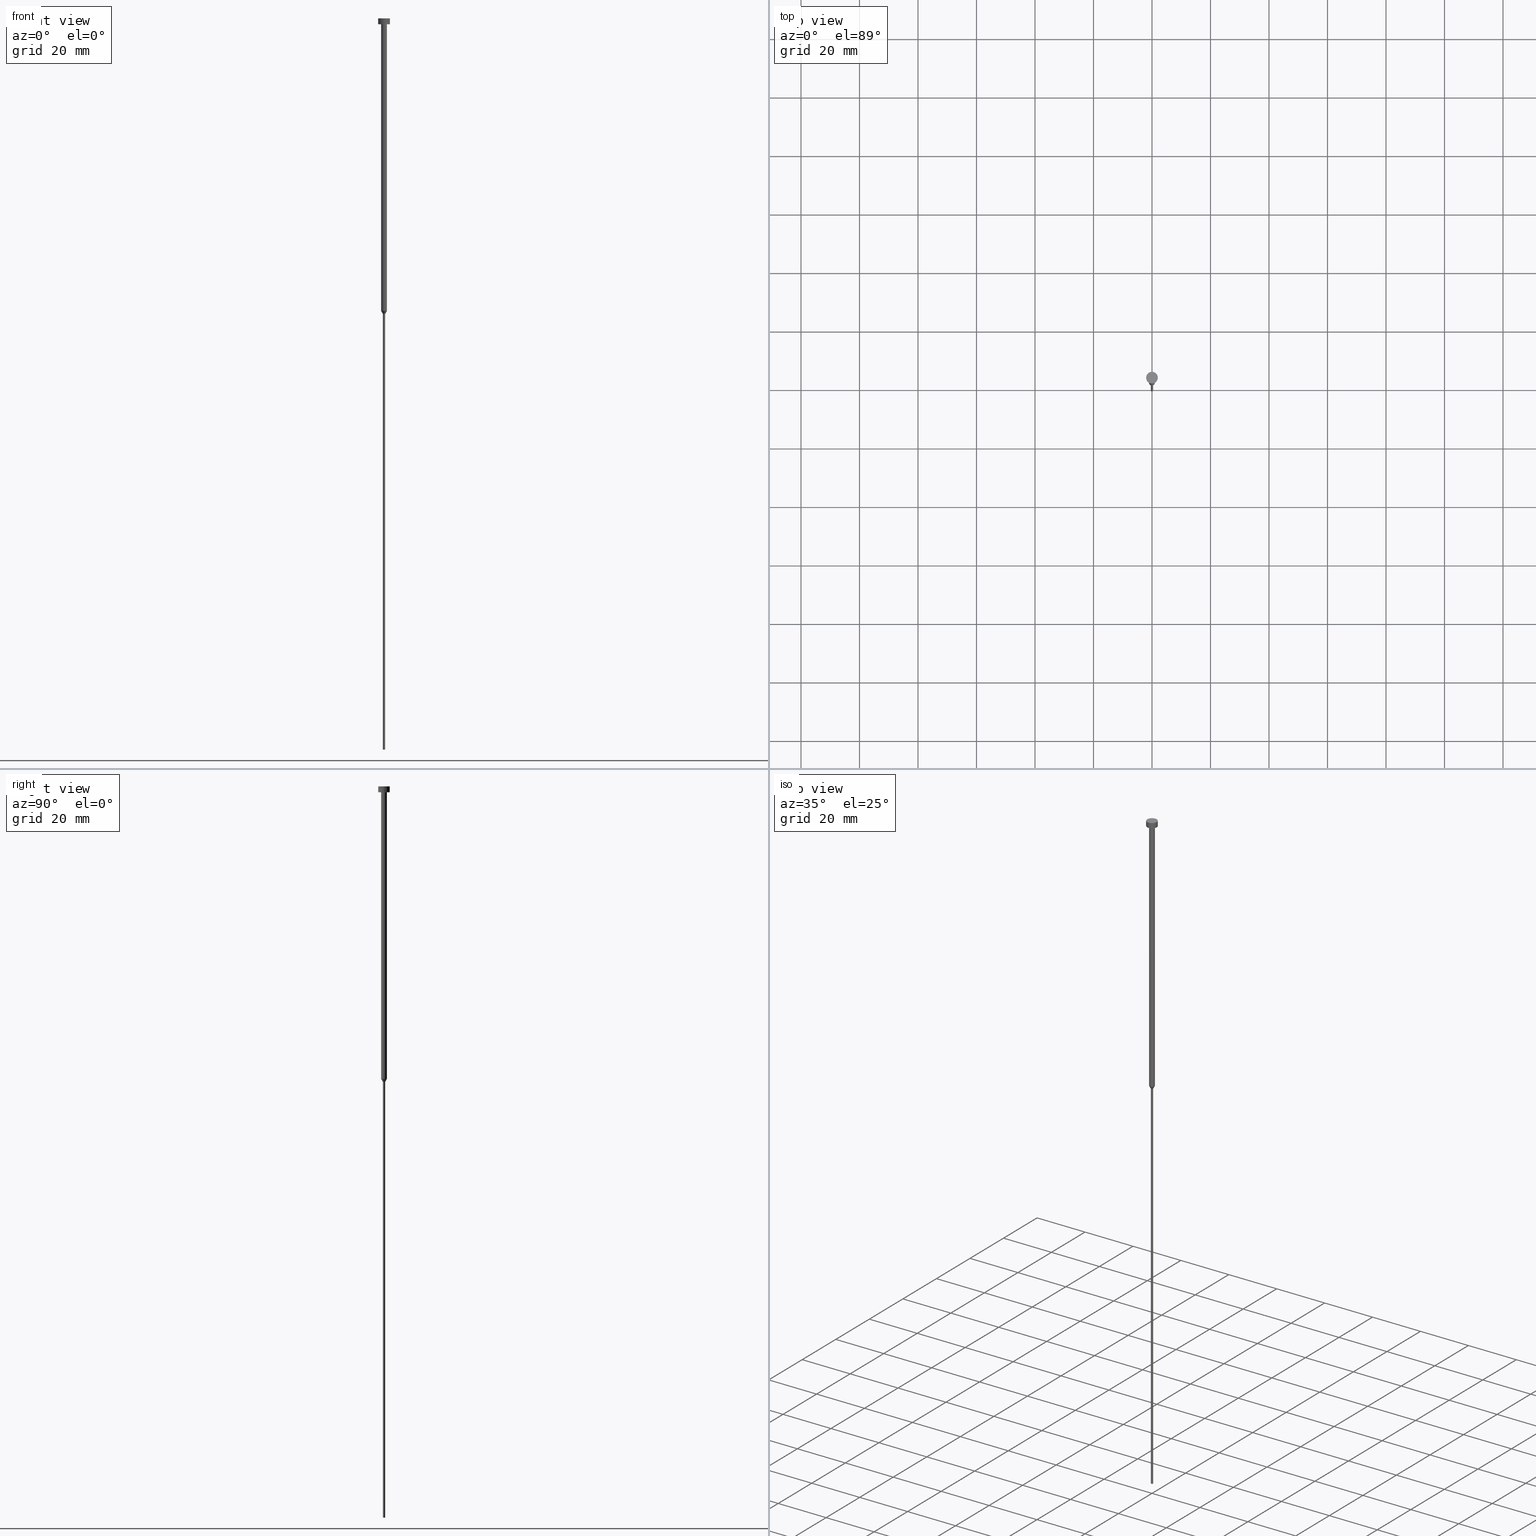
[diagram: canonical four-view strip — front | top / right | iso, engineering-drawing reading convention]
A machine part, canonical four-view strip (front | top / right | iso — engineering-drawing reading convention). The complete STEP part file that produces these views, byte-faithful:
ISO-10303-21;
HEADER;
FILE_DESCRIPTION (( 'STEP AP203' ),
    '1' );
FILE_NAME ('155c.STEP',
    '2023-02-13T10:58:49',
    ( '' ),
    ( '' ),
    'SwSTEP 2.0',
    'SolidWorks 2019',
    '' );
FILE_SCHEMA (( 'CONFIG_CONTROL_DESIGN' ));
ENDSEC;

DATA;
#1 = CARTESIAN_POINT ( 'NONE',  ( 0.000000000000000000, 0.000000000000000000, -250.0000000000000000 ) ) ;
#2 = DIRECTION ( 'NONE',  ( -0.000000000000000000, -0.000000000000000000, 1.000000000000000000 ) ) ;
#3 = APPROVAL_ROLE ( '' ) ;
#4 = DIRECTION ( 'NONE',  ( 1.000000000000000000, 0.000000000000000000, 0.000000000000000000 ) ) ;
#5 = CARTESIAN_POINT ( 'NONE',  ( 0.000000000000000000, 0.000000000000000000, -250.0000000000000000 ) ) ;
#6 = AXIS2_PLACEMENT_3D ( 'NONE', #98, #268, #211 ) ;
#7 = APPROVAL_ROLE ( '' ) ;
#8 = DIRECTION ( 'NONE',  ( 1.000000000000000000, 0.000000000000000000, 0.000000000000000000 ) ) ;
#9 = CARTESIAN_POINT ( 'NONE',  ( 2.000000000000000000, 0.000000000000000000, -2.000000000000000444 ) ) ;
#10 = CALENDAR_DATE ( 2023, 13, 2 ) ;
#11 = EDGE_CURVE ( 'NONE', #348, #246, #221, .T. ) ;
#12 = DIRECTION ( 'NONE',  ( -0.000000000000000000, -0.000000000000000000, 1.000000000000000000 ) ) ;
#13 = CONICAL_SURFACE ( 'NONE', #187, 1.000000000000003109, 0.5235987755983013692 ) ;
#14 = DIRECTION ( 'NONE',  ( 1.000000000000000000, 0.000000000000000000, 0.000000000000000000 ) ) ;
#15 = CARTESIAN_POINT ( 'NONE',  ( 1.000000000000003331, 0.000000000000000000, 0.000000000000000000 ) ) ;
#16 = CYLINDRICAL_SURFACE ( 'NONE', #104, 2.000000000000000000 ) ;
#17 = AXIS2_PLACEMENT_3D ( 'NONE', #92, #234, #204 ) ;
#18 = APPROVAL_ROLE ( '' ) ;
#19 = EDGE_LOOP ( 'NONE', ( #85, #175 ) ) ;
#20 = ORIENTED_EDGE ( 'NONE', *, *, #295, .F. ) ;
#21 = CIRCLE ( 'NONE', #193, 2.000000000000000000 ) ;
#22 = CIRCLE ( 'NONE', #199, 0.4000000000000000222 ) ;
#23 = VERTEX_POINT ( 'NONE', #165 ) ;
#24 = DIRECTION ( 'NONE',  ( 1.000000000000000000, 0.000000000000000000, 0.000000000000000000 ) ) ;
#25 = VERTEX_POINT ( 'NONE', #141 ) ;
#26 = CC_DESIGN_PERSON_AND_ORGANIZATION_ASSIGNMENT ( #219, #294, ( #49 ) ) ;
#27 = ORIENTED_EDGE ( 'NONE', *, *, #220, .T. ) ;
#28 = AXIS2_PLACEMENT_3D ( 'NONE', #122, #205, #265 ) ;
#29 = CARTESIAN_POINT ( 'NONE',  ( 2.000000000000000000, 0.000000000000000000, -2.449293598294705921E-16 ) ) ;
#30 = DIRECTION ( 'NONE',  ( -0.000000000000000000, -0.000000000000000000, 1.000000000000000000 ) ) ;
#31 = ADVANCED_FACE ( 'NONE', ( #115 ), #201, .T. ) ;
#32 = CARTESIAN_POINT ( 'NONE',  ( 0.000000000000000000, 0.000000000000000000, -100.0000000000000000 ) ) ;
#33 = DIRECTION ( 'NONE',  ( -1.000000000000000000, 0.000000000000000000, -0.000000000000000000 ) ) ;
#34 = CALENDAR_DATE ( 2023, 13, 2 ) ;
#35 = VECTOR ( 'NONE', #99, 1000.000000000000227 ) ;
#36 = AXIS2_PLACEMENT_3D ( 'NONE', #60, #86, #148 ) ;
#37 = DIRECTION ( 'NONE',  ( 1.000000000000000000, 0.000000000000000000, 0.000000000000000000 ) ) ;
#38 = APPROVAL_PERSON_ORGANIZATION ( #337, #276, #7 ) ;
#39 = PLANE ( 'NONE',  #111 ) ;
#40 = ADVANCED_FACE ( 'NONE', ( #145 ), #330, .T. ) ;
#41 = LINE ( 'NONE', #69, #67 ) ;
#42 = FACE_OUTER_BOUND ( 'NONE', #253, .T. ) ;
#43 = CARTESIAN_POINT ( 'NONE',  ( 0.000000000000000000, 0.000000000000000000, -1.224646799147352961E-16 ) ) ;
#44 = ADVANCED_FACE ( 'NONE', ( #228 ), #13, .T. ) ;
#45 = DIRECTION ( 'NONE',  ( 1.000000000000000000, 0.000000000000000000, 0.000000000000000000 ) ) ;
#46 = CALENDAR_DATE ( 2023, 13, 2 ) ;
#47 = CLOSED_SHELL ( 'NONE', ( #185, #323, #44, #256, #40, #56, #125, #31, #101, #308, #251 ) ) ;
#48 = APPROVAL_PERSON_ORGANIZATION ( #255, #329, #3 ) ;
#49 = PRODUCT_DEFINITION ( 'NEZN�M�', '', #339, #212 ) ;
#50 = CALENDAR_DATE ( 2023, 13, 2 ) ;
#51 = ORIENTED_EDGE ( 'NONE', *, *, #240, .F. ) ;
#52 = ORIENTED_EDGE ( 'NONE', *, *, #119, .F. ) ;
#53 = ORIENTED_EDGE ( 'NONE', *, *, #334, .T. ) ;
#54 = CIRCLE ( 'NONE', #123, 1.000000000000003109 ) ;
#55 = ORIENTED_EDGE ( 'NONE', *, *, #62, .T. ) ;
#56 = ADVANCED_FACE ( 'NONE', ( #336 ), #285, .T. ) ;
#57 = SECURITY_CLASSIFICATION_LEVEL ( 'unclassified' ) ;
#58 = ORIENTED_EDGE ( 'NONE', *, *, #349, .T. ) ;
#59 = CARTESIAN_POINT ( 'NONE',  ( -0.3999999999999999667, 4.898587196589412459E-17, -101.0392304845413349 ) ) ;
#60 = CARTESIAN_POINT ( 'NONE',  ( 0.000000000000000000, 0.000000000000000000, -250.0000000000000000 ) ) ;
#61 = VECTOR ( 'NONE', #279, 1000.000000000000000 ) ;
#62 = EDGE_CURVE ( 'NONE', #25, #134, #259, .T. ) ;
#63 = CC_DESIGN_APPROVAL ( #276, ( #170 ) ) ;
#64 = DIRECTION ( 'NONE',  ( 1.000000000000000000, 0.000000000000000000, 0.000000000000000000 ) ) ;
#65 = FACE_OUTER_BOUND ( 'NONE', #79, .T. ) ;
#66 = ORIENTED_EDGE ( 'NONE', *, *, #229, .F. ) ;
#67 = VECTOR ( 'NONE', #151, 1000.000000000000227 ) ;
#68 = CIRCLE ( 'NONE', #182, 1.000000000000003109 ) ;
#69 = CARTESIAN_POINT ( 'NONE',  ( 1.000000000000003109, 0.000000000000000000, -100.0000000000000000 ) ) ;
#70 = CARTESIAN_POINT ( 'NONE',  ( 0.000000000000000000, 0.000000000000000000, -101.0392304845413349 ) ) ;
#71 = CARTESIAN_POINT ( 'NONE',  ( 0.000000000000000000, 0.000000000000000000, -2.449293598294705921E-16 ) ) ;
#72 = ADVANCED_BREP_SHAPE_REPRESENTATION ( '155c', ( #207, #344 ), #90 ) ;
#73 = EDGE_CURVE ( 'NONE', #277, #162, #156, .T. ) ;
#74 = CARTESIAN_POINT ( 'NONE',  ( 0.000000000000000000, 0.000000000000000000, -2.000000000000000444 ) ) ;
#75 = LOCAL_TIME ( 11, 58, 49.00000000000000000, #278 ) ;
#76 = CYLINDRICAL_SURFACE ( 'NONE', #177, 1.000000000000003331 ) ;
#77 = APPROVAL_DATE_TIME ( #318, #329 ) ;
#78 = CARTESIAN_POINT ( 'NONE',  ( 0.000000000000000000, 0.000000000000000000, 0.000000000000000000 ) ) ;
#79 = EDGE_LOOP ( 'NONE', ( #222, #20 ) ) ;
#80 = VERTEX_POINT ( 'NONE', #307 ) ;
#81 = PRODUCT_RELATED_PRODUCT_CATEGORY ( 'detail', '', ( #121 ) ) ;
#82 = AXIS2_PLACEMENT_3D ( 'NONE', #5, #261, #33 ) ;
#83 = APPROVAL_PERSON_ORGANIZATION ( #188, #96, #18 ) ;
#84 = PERSON_AND_ORGANIZATION ( #132, #248 ) ;
#85 = ORIENTED_EDGE ( 'NONE', *, *, #73, .F. ) ;
#86 = DIRECTION ( 'NONE',  ( -0.000000000000000000, -0.000000000000000000, 1.000000000000000000 ) ) ;
#87 =( NAMED_UNIT ( * ) PLANE_ANGLE_UNIT ( ) SI_UNIT ( $, .RADIAN. ) );
#88 = DIRECTION ( 'NONE',  ( -1.000000000000000000, 0.000000000000000000, -0.000000000000000000 ) ) ;
#89 = AXIS2_PLACEMENT_3D ( 'NONE', #288, #178, #239 ) ;
#90 =( GEOMETRIC_REPRESENTATION_CONTEXT ( 3 ) GLOBAL_UNCERTAINTY_ASSIGNED_CONTEXT ( ( #343 ) ) GLOBAL_UNIT_ASSIGNED_CONTEXT ( ( #167, #87, #109 ) ) REPRESENTATION_CONTEXT ( 'NONE', 'WORKASPACE' ) );
#91 = DIRECTION ( 'NONE',  ( 1.000000000000000000, 0.000000000000000000, 0.000000000000000000 ) ) ;
#92 = CARTESIAN_POINT ( 'NONE',  ( 0.000000000000000000, 0.000000000000000000, 0.000000000000000000 ) ) ;
#93 = CARTESIAN_POINT ( 'NONE',  ( 0.000000000000000000, 0.000000000000000000, -101.0392304845413349 ) ) ;
#94 = FACE_OUTER_BOUND ( 'NONE', #158, .T. ) ;
#95 = DIRECTION ( 'NONE',  ( -0.000000000000000000, -0.000000000000000000, 1.000000000000000000 ) ) ;
#96 = APPROVAL ( #354, 'NEUR�EN�' ) ;
#97 = DIRECTION ( 'NONE',  ( 1.000000000000000000, 0.000000000000000000, 0.000000000000000000 ) ) ;
#98 = CARTESIAN_POINT ( 'NONE',  ( 0.000000000000000000, 0.000000000000000000, 0.000000000000000000 ) ) ;
#99 = DIRECTION ( 'NONE',  ( -0.5000000000000021094, 6.123233995736791920E-17, 0.8660254037844373753 ) ) ;
#100 = DATE_AND_TIME ( #347, #75 ) ;
#101 = ADVANCED_FACE ( 'NONE', ( #197, #65 ), #202, .T. ) ;
#102 = VERTEX_POINT ( 'NONE', #29 ) ;
#103 = ORIENTED_EDGE ( 'NONE', *, *, #73, .T. ) ;
#104 = AXIS2_PLACEMENT_3D ( 'NONE', #129, #126, #14 ) ;
#105 = CC_DESIGN_APPROVAL ( #329, ( #49 ) ) ;
#106 = VERTEX_POINT ( 'NONE', #262 ) ;
#107 = CC_DESIGN_PERSON_AND_ORGANIZATION_ASSIGNMENT ( #164, #112, ( #170 ) ) ;
#108 = ORIENTED_EDGE ( 'NONE', *, *, #166, .F. ) ;
#109 =( NAMED_UNIT ( * ) SI_UNIT ( $, .STERADIAN. ) SOLID_ANGLE_UNIT ( ) );
#110 = EDGE_LOOP ( 'NONE', ( #297, #113 ) ) ;
#111 = AXIS2_PLACEMENT_3D ( 'NONE', #43, #150, #206 ) ;
#112 = PERSON_AND_ORGANIZATION_ROLE ( 'classification_officer' ) ;
#113 = ORIENTED_EDGE ( 'NONE', *, *, #119, .T. ) ;
#114 = MECHANICAL_CONTEXT ( 'NONE', #186, 'mechanical' ) ;
#115 = FACE_OUTER_BOUND ( 'NONE', #322, .T. ) ;
#116 = APPROVAL_STATUS ( 'not_yet_approved' ) ;
#117 = DIRECTION ( 'NONE',  ( -0.000000000000000000, -0.000000000000000000, 1.000000000000000000 ) ) ;
#118 = CARTESIAN_POINT ( 'NONE',  ( 0.000000000000000000, 0.000000000000000000, 0.000000000000000000 ) ) ;
#119 = EDGE_CURVE ( 'NONE', #325, #102, #21, .T. ) ;
#120 = CARTESIAN_POINT ( 'NONE',  ( 0.000000000000000000, 0.000000000000000000, -2.000000000000000444 ) ) ;
#121 = PRODUCT ( '155c', '155c', '', ( #114 ) ) ;
#122 = CARTESIAN_POINT ( 'NONE',  ( 0.000000000000000000, 0.000000000000000000, 0.000000000000000000 ) ) ;
#123 = AXIS2_PLACEMENT_3D ( 'NONE', #284, #146, #8 ) ;
#124 = CARTESIAN_POINT ( 'NONE',  ( 0.3999999999999999667, 0.000000000000000000, 0.000000000000000000 ) ) ;
#125 = ADVANCED_FACE ( 'NONE', ( #172 ), #142, .T. ) ;
#126 = DIRECTION ( 'NONE',  ( -0.000000000000000000, -0.000000000000000000, 1.000000000000000000 ) ) ;
#127 = CARTESIAN_POINT ( 'NONE',  ( 0.3999999999999999667, 0.000000000000000000, -101.0392304845413349 ) ) ;
#128 = AXIS2_PLACEMENT_3D ( 'NONE', #71, #236, #97 ) ;
#129 = CARTESIAN_POINT ( 'NONE',  ( 0.000000000000000000, 0.000000000000000000, 0.000000000000000000 ) ) ;
#130 = CC_DESIGN_SECURITY_CLASSIFICATION ( #170, ( #339 ) ) ;
#131 = EDGE_CURVE ( 'NONE', #218, #23, #181, .T. ) ;
#132 = PERSON ( 'NEUR�EN�', 'NEUR�EN�', 'NEUR�EN�', ('NEUR�EN�'), ('NEUR�EN�'), ('NEUR�EN�') ) ;
#133 = DIRECTION ( 'NONE',  ( 0.000000000000000000, 0.000000000000000000, 1.000000000000000000 ) ) ;
#134 = VERTEX_POINT ( 'NONE', #174 ) ;
#135 = ORIENTED_EDGE ( 'NONE', *, *, #11, .T. ) ;
#136 = ORIENTED_EDGE ( 'NONE', *, *, #295, .T. ) ;
#137 = CIRCLE ( 'NONE', #128, 2.000000000000000000 ) ;
#138 = EDGE_CURVE ( 'NONE', #106, #25, #54, .T. ) ;
#139 = EDGE_LOOP ( 'NONE', ( #143, #135, #194, #324 ) ) ;
#140 = PERSON_AND_ORGANIZATION ( #132, #248 ) ;
#141 = CARTESIAN_POINT ( 'NONE',  ( -1.000000000000003109, 1.224646799147356905E-16, -100.0000000000000000 ) ) ;
#142 = CONICAL_SURFACE ( 'NONE', #270, 1.000000000000003109, 0.5235987755983013692 ) ;
#143 = ORIENTED_EDGE ( 'NONE', *, *, #147, .F. ) ;
#144 = PERSON_AND_ORGANIZATION ( #132, #248 ) ;
#145 = FACE_OUTER_BOUND ( 'NONE', #19, .T. ) ;
#146 = DIRECTION ( 'NONE',  ( -0.000000000000000000, -0.000000000000000000, 1.000000000000000000 ) ) ;
#147 = EDGE_CURVE ( 'NONE', #348, #25, #179, .T. ) ;
#148 = DIRECTION ( 'NONE',  ( 1.000000000000000000, 0.000000000000000000, 0.000000000000000000 ) ) ;
#149 = SHAPE_DEFINITION_REPRESENTATION ( #153, #72 ) ;
#150 = DIRECTION ( 'NONE',  ( 0.000000000000000000, -0.000000000000000000, 1.000000000000000000 ) ) ;
#151 = DIRECTION ( 'NONE',  ( 0.5000000000000021094, 0.000000000000000000, 0.8660254037844373753 ) ) ;
#152 = FACE_OUTER_BOUND ( 'NONE', #355, .T. ) ;
#153 = PRODUCT_DEFINITION_SHAPE ( 'NONE', 'NONE',  #49 ) ;
#154 = CYLINDRICAL_SURFACE ( 'NONE', #6, 2.000000000000000000 ) ;
#155 = DIRECTION ( 'NONE',  ( -0.000000000000000000, -0.000000000000000000, 1.000000000000000000 ) ) ;
#156 = CIRCLE ( 'NONE', #36, 0.4000000000000000222 ) ;
#157 = DATE_AND_TIME ( #46, #223 ) ;
#158 = EDGE_LOOP ( 'NONE', ( #103, #249, #51, #274 ) ) ;
#159 = APPROVAL_DATE_TIME ( #100, #96 ) ;
#160 = CC_DESIGN_DATE_AND_TIME_ASSIGNMENT ( #157, #271, ( #49 ) ) ;
#161 = ORIENTED_EDGE ( 'NONE', *, *, #263, .F. ) ;
#162 = VERTEX_POINT ( 'NONE', #267 ) ;
#163 = AXIS2_PLACEMENT_3D ( 'NONE', #118, #2, #328 ) ;
#164 = PERSON_AND_ORGANIZATION ( #132, #248 ) ;
#165 = CARTESIAN_POINT ( 'NONE',  ( -2.000000000000000000, 2.449293598294706414E-16, -2.000000000000000444 ) ) ;
#166 = EDGE_CURVE ( 'NONE', #134, #80, #176, .T. ) ;
#167 =( LENGTH_UNIT ( ) NAMED_UNIT ( * ) SI_UNIT ( .MILLI., .METRE. ) );
#168 = ORIENTED_EDGE ( 'NONE', *, *, #240, .T. ) ;
#169 = VECTOR ( 'NONE', #315, 1000.000000000000000 ) ;
#170 = SECURITY_CLASSIFICATION ( '', '', #57 ) ;
#171 = APPLICATION_PROTOCOL_DEFINITION ( 'international standard', 'config_control_design', 1994, #186 ) ;
#172 = FACE_OUTER_BOUND ( 'NONE', #139, .T. ) ;
#173 = CC_DESIGN_PERSON_AND_ORGANIZATION_ASSIGNMENT ( #140, #326, ( #339 ) ) ;
#174 = CARTESIAN_POINT ( 'NONE',  ( -1.000000000000003553, 1.224646799147357398E-16, -2.000000000000000444 ) ) ;
#175 = ORIENTED_EDGE ( 'NONE', *, *, #349, .F. ) ;
#176 = CIRCLE ( 'NONE', #242, 1.000000000000003553 ) ;
#177 = AXIS2_PLACEMENT_3D ( 'NONE', #184, #269, #252 ) ;
#178 = DIRECTION ( 'NONE',  ( -0.000000000000000000, -0.000000000000000000, 1.000000000000000000 ) ) ;
#179 = LINE ( 'NONE', #341, #35 ) ;
#180 = DIRECTION ( 'NONE',  ( -0.000000000000000000, -0.000000000000000000, 1.000000000000000000 ) ) ;
#181 = CIRCLE ( 'NONE', #291, 2.000000000000000000 ) ;
#182 = AXIS2_PLACEMENT_3D ( 'NONE', #238, #95, #183 ) ;
#183 = DIRECTION ( 'NONE',  ( 1.000000000000000000, 0.000000000000000000, 0.000000000000000000 ) ) ;
#184 = CARTESIAN_POINT ( 'NONE',  ( 0.000000000000000000, 0.000000000000000000, 0.000000000000000000 ) ) ;
#185 = ADVANCED_FACE ( 'NONE', ( #152 ), #16, .T. ) ;
#186 = APPLICATION_CONTEXT ( 'configuration controlled 3d designs of mechanical parts and assemblies' ) ;
#187 = AXIS2_PLACEMENT_3D ( 'NONE', #235, #283, #37 ) ;
#188 = PERSON_AND_ORGANIZATION ( #132, #248 ) ;
#189 = EDGE_LOOP ( 'NONE', ( #216, #58, #27, #191 ) ) ;
#190 = EDGE_CURVE ( 'NONE', #162, #348, #342, .T. ) ;
#191 = ORIENTED_EDGE ( 'NONE', *, *, #11, .F. ) ;
#192 = ORIENTED_EDGE ( 'NONE', *, *, #215, .F. ) ;
#193 = AXIS2_PLACEMENT_3D ( 'NONE', #198, #305, #64 ) ;
#194 = ORIENTED_EDGE ( 'NONE', *, *, #229, .T. ) ;
#195 = AXIS2_PLACEMENT_3D ( 'NONE', #314, #180, #290 ) ;
#196 = CC_DESIGN_PERSON_AND_ORGANIZATION_ASSIGNMENT ( #84, #300, ( #339 ) ) ;
#197 = FACE_BOUND ( 'NONE', #250, .T. ) ;
#198 = CARTESIAN_POINT ( 'NONE',  ( 0.000000000000000000, 0.000000000000000000, -2.449293598294705921E-16 ) ) ;
#199 = AXIS2_PLACEMENT_3D ( 'NONE', #1, #30, #24 ) ;
#200 = EDGE_CURVE ( 'NONE', #80, #134, #286, .T. ) ;
#201 = CYLINDRICAL_SURFACE ( 'NONE', #163, 1.000000000000003331 ) ;
#202 = PLANE ( 'NONE',  #350 ) ;
#203 = DATE_AND_TIME ( #34, #243 ) ;
#204 = DIRECTION ( 'NONE',  ( 1.000000000000000000, 0.000000000000000000, 0.000000000000000000 ) ) ;
#205 = DIRECTION ( 'NONE',  ( -0.000000000000000000, -0.000000000000000000, 1.000000000000000000 ) ) ;
#206 = DIRECTION ( 'NONE',  ( 1.000000000000000000, 0.000000000000000000, 0.000000000000000000 ) ) ;
#207 = MANIFOLD_SOLID_BREP ( 'Rotovat1', #47 ) ;
#208 = DIRECTION ( 'NONE',  ( -0.000000000000000000, -0.000000000000000000, 1.000000000000000000 ) ) ;
#209 = AXIS2_PLACEMENT_3D ( 'NONE', #93, #281, #335 ) ;
#210 = EDGE_CURVE ( 'NONE', #106, #80, #346, .T. ) ;
#211 = DIRECTION ( 'NONE',  ( 1.000000000000000000, 0.000000000000000000, 0.000000000000000000 ) ) ;
#212 = DESIGN_CONTEXT ( 'detailed design', #225, 'design' ) ;
#213 = CARTESIAN_POINT ( 'NONE',  ( -2.000000000000000000, 2.449293598294706414E-16, -2.449293598294705921E-16 ) ) ;
#214 = ORIENTED_EDGE ( 'NONE', *, *, #131, .T. ) ;
#215 = EDGE_CURVE ( 'NONE', #102, #325, #137, .T. ) ;
#216 = ORIENTED_EDGE ( 'NONE', *, *, #190, .F. ) ;
#217 = ORIENTED_EDGE ( 'NONE', *, *, #166, .T. ) ;
#218 = VERTEX_POINT ( 'NONE', #9 ) ;
#219 = PERSON_AND_ORGANIZATION ( #132, #248 ) ;
#220 = EDGE_CURVE ( 'NONE', #277, #246, #311, .T. ) ;
#221 = CIRCLE ( 'NONE', #209, 0.3999999999999999667 ) ;
#222 = ORIENTED_EDGE ( 'NONE', *, *, #131, .F. ) ;
#223 = LOCAL_TIME ( 11, 58, 49.00000000000000000, #302 ) ;
#224 = COORDINATED_UNIVERSAL_TIME_OFFSET ( 1, 0, .AHEAD. ) ;
#225 = APPLICATION_CONTEXT ( 'configuration controlled 3d designs of mechanical parts and assemblies' ) ;
#226 = ORIENTED_EDGE ( 'NONE', *, *, #263, .T. ) ;
#227 = DIRECTION ( 'NONE',  ( 1.000000000000000000, 0.000000000000000000, 0.000000000000000000 ) ) ;
#228 = FACE_OUTER_BOUND ( 'NONE', #231, .T. ) ;
#229 = EDGE_CURVE ( 'NONE', #246, #106, #41, .T. ) ;
#230 = DATE_AND_TIME ( #10, #312 ) ;
#231 = EDGE_LOOP ( 'NONE', ( #168, #352, #272, #66 ) ) ;
#232 = VECTOR ( 'NONE', #244, 1000.000000000000000 ) ;
#233 = CC_DESIGN_APPROVAL ( #96, ( #339 ) ) ;
#234 = DIRECTION ( 'NONE',  ( -0.000000000000000000, -0.000000000000000000, 1.000000000000000000 ) ) ;
#235 = CARTESIAN_POINT ( 'NONE',  ( 0.000000000000000000, 0.000000000000000000, -100.0000000000000000 ) ) ;
#236 = DIRECTION ( 'NONE',  ( -0.000000000000000000, -0.000000000000000000, 1.000000000000000000 ) ) ;
#237 = CIRCLE ( 'NONE', #195, 2.000000000000000000 ) ;
#238 = CARTESIAN_POINT ( 'NONE',  ( 0.000000000000000000, 0.000000000000000000, -100.0000000000000000 ) ) ;
#239 = DIRECTION ( 'NONE',  ( 1.000000000000000000, 0.000000000000000000, 0.000000000000000000 ) ) ;
#240 = EDGE_CURVE ( 'NONE', #246, #348, #304, .T. ) ;
#241 = LINE ( 'NONE', #292, #169 ) ;
#242 = AXIS2_PLACEMENT_3D ( 'NONE', #74, #338, #45 ) ;
#243 = LOCAL_TIME ( 11, 58, 49.00000000000000000, #310 ) ;
#244 = DIRECTION ( 'NONE',  ( -0.000000000000000000, -0.000000000000000000, 1.000000000000000000 ) ) ;
#245 = PERSON_AND_ORGANIZATION_ROLE ( 'design_owner' ) ;
#246 = VERTEX_POINT ( 'NONE', #127 ) ;
#247 = ORIENTED_EDGE ( 'NONE', *, *, #200, .F. ) ;
#248 = ORGANIZATION ( 'NEUR�EN�', 'NEUR�EN�', '' ) ;
#249 = ORIENTED_EDGE ( 'NONE', *, *, #190, .T. ) ;
#250 = EDGE_LOOP ( 'NONE', ( #299, #217 ) ) ;
#251 = ADVANCED_FACE ( 'NONE', ( #313 ), #39, .T. ) ;
#252 = DIRECTION ( 'NONE',  ( 1.000000000000000000, 0.000000000000000000, 0.000000000000000000 ) ) ;
#253 = EDGE_LOOP ( 'NONE', ( #161, #136, #53, #52 ) ) ;
#254 = CARTESIAN_POINT ( 'NONE',  ( -1.000000000000003331, 1.224646799147357151E-16, 0.000000000000000000 ) ) ;
#255 = PERSON_AND_ORGANIZATION ( #132, #248 ) ;
#256 = ADVANCED_FACE ( 'NONE', ( #94 ), #264, .T. ) ;
#257 = ORIENTED_EDGE ( 'NONE', *, *, #138, .T. ) ;
#258 = APPLICATION_PROTOCOL_DEFINITION ( 'international standard', 'config_control_design', 1994, #225 ) ;
#259 = LINE ( 'NONE', #254, #61 ) ;
#260 = DATE_TIME_ROLE ( 'classification_date' ) ;
#261 = DIRECTION ( 'NONE',  ( 0.000000000000000000, 0.000000000000000000, -1.000000000000000000 ) ) ;
#262 = CARTESIAN_POINT ( 'NONE',  ( 1.000000000000003109, 0.000000000000000000, -100.0000000000000000 ) ) ;
#263 = EDGE_CURVE ( 'NONE', #23, #325, #241, .T. ) ;
#264 = CYLINDRICAL_SURFACE ( 'NONE', #28, 0.3999999999999999667 ) ;
#265 = DIRECTION ( 'NONE',  ( 1.000000000000000000, 0.000000000000000000, 0.000000000000000000 ) ) ;
#266 = VECTOR ( 'NONE', #12, 1000.000000000000000 ) ;
#267 = CARTESIAN_POINT ( 'NONE',  ( -0.4000000000000000777, 4.898587196589413692E-17, -250.0000000000000000 ) ) ;
#268 = DIRECTION ( 'NONE',  ( -0.000000000000000000, -0.000000000000000000, 1.000000000000000000 ) ) ;
#269 = DIRECTION ( 'NONE',  ( -0.000000000000000000, -0.000000000000000000, 1.000000000000000000 ) ) ;
#270 = AXIS2_PLACEMENT_3D ( 'NONE', #32, #117, #4 ) ;
#271 = DATE_TIME_ROLE ( 'creation_date' ) ;
#272 = ORIENTED_EDGE ( 'NONE', *, *, #138, .F. ) ;
#273 = DIRECTION ( 'NONE',  ( -0.000000000000000000, -0.000000000000000000, 1.000000000000000000 ) ) ;
#274 = ORIENTED_EDGE ( 'NONE', *, *, #220, .F. ) ;
#275 = EDGE_LOOP ( 'NONE', ( #257, #55, #247, #320 ) ) ;
#276 = APPROVAL ( #116, 'NEUR�EN�' ) ;
#277 = VERTEX_POINT ( 'NONE', #340 ) ;
#278 = COORDINATED_UNIVERSAL_TIME_OFFSET ( 1, 0, .AHEAD. ) ;
#279 = DIRECTION ( 'NONE',  ( -0.000000000000000000, -0.000000000000000000, 1.000000000000000000 ) ) ;
#280 = CARTESIAN_POINT ( 'NONE',  ( 2.000000000000000000, 0.000000000000000000, 0.000000000000000000 ) ) ;
#281 = DIRECTION ( 'NONE',  ( -0.000000000000000000, -0.000000000000000000, 1.000000000000000000 ) ) ;
#282 = LINE ( 'NONE', #280, #306 ) ;
#283 = DIRECTION ( 'NONE',  ( -0.000000000000000000, -0.000000000000000000, 1.000000000000000000 ) ) ;
#284 = CARTESIAN_POINT ( 'NONE',  ( 0.000000000000000000, 0.000000000000000000, -100.0000000000000000 ) ) ;
#285 = CYLINDRICAL_SURFACE ( 'NONE', #17, 0.3999999999999999667 ) ;
#286 = CIRCLE ( 'NONE', #89, 1.000000000000003553 ) ;
#287 = DIRECTION ( 'NONE',  ( 1.000000000000000000, 0.000000000000000000, 0.000000000000000000 ) ) ;
#288 = CARTESIAN_POINT ( 'NONE',  ( 0.000000000000000000, 0.000000000000000000, -2.000000000000000444 ) ) ;
#289 = EDGE_CURVE ( 'NONE', #25, #106, #68, .T. ) ;
#290 = DIRECTION ( 'NONE',  ( 1.000000000000000000, 0.000000000000000000, 0.000000000000000000 ) ) ;
#291 = AXIS2_PLACEMENT_3D ( 'NONE', #120, #333, #91 ) ;
#292 = CARTESIAN_POINT ( 'NONE',  ( -2.000000000000000000, 2.449293598294706414E-16, 0.000000000000000000 ) ) ;
#293 = CARTESIAN_POINT ( 'NONE',  ( -0.3999999999999999667, 4.898587196589412459E-17, 0.000000000000000000 ) ) ;
#294 = PERSON_AND_ORGANIZATION_ROLE ( 'creator' ) ;
#295 = EDGE_CURVE ( 'NONE', #23, #218, #237, .T. ) ;
#296 = COORDINATED_UNIVERSAL_TIME_OFFSET ( 1, 0, .AHEAD. ) ;
#297 = ORIENTED_EDGE ( 'NONE', *, *, #215, .T. ) ;
#298 = CC_DESIGN_PERSON_AND_ORGANIZATION_ASSIGNMENT ( #144, #245, ( #121 ) ) ;
#299 = ORIENTED_EDGE ( 'NONE', *, *, #200, .T. ) ;
#300 = PERSON_AND_ORGANIZATION_ROLE ( 'design_supplier' ) ;
#301 = ORIENTED_EDGE ( 'NONE', *, *, #289, .T. ) ;
#302 = COORDINATED_UNIVERSAL_TIME_OFFSET ( 1, 0, .AHEAD. ) ;
#303 = DIRECTION ( 'NONE',  ( 0.000000000000000000, 0.000000000000000000, -1.000000000000000000 ) ) ;
#304 = CIRCLE ( 'NONE', #332, 0.3999999999999999667 ) ;
#305 = DIRECTION ( 'NONE',  ( -0.000000000000000000, -0.000000000000000000, 1.000000000000000000 ) ) ;
#306 = VECTOR ( 'NONE', #273, 1000.000000000000000 ) ;
#307 = CARTESIAN_POINT ( 'NONE',  ( 1.000000000000003553, 0.000000000000000000, -2.000000000000000444 ) ) ;
#308 = ADVANCED_FACE ( 'NONE', ( #42 ), #154, .T. ) ;
#309 = CARTESIAN_POINT ( 'NONE',  ( 0.000000000000000000, -2.000000000000000000, -2.000000000000000444 ) ) ;
#310 = COORDINATED_UNIVERSAL_TIME_OFFSET ( 1, 0, .AHEAD. ) ;
#311 = LINE ( 'NONE', #124, #321 ) ;
#312 = LOCAL_TIME ( 11, 58, 49.00000000000000000, #224 ) ;
#313 = FACE_OUTER_BOUND ( 'NONE', #110, .T. ) ;
#314 = CARTESIAN_POINT ( 'NONE',  ( 0.000000000000000000, 0.000000000000000000, -2.000000000000000444 ) ) ;
#315 = DIRECTION ( 'NONE',  ( -0.000000000000000000, -0.000000000000000000, 1.000000000000000000 ) ) ;
#316 = LOCAL_TIME ( 11, 58, 49.00000000000000000, #296 ) ;
#317 = FACE_OUTER_BOUND ( 'NONE', #275, .T. ) ;
#318 = DATE_AND_TIME ( #50, #316 ) ;
#319 = APPROVAL_STATUS ( 'not_yet_approved' ) ;
#320 = ORIENTED_EDGE ( 'NONE', *, *, #210, .F. ) ;
#321 = VECTOR ( 'NONE', #155, 1000.000000000000000 ) ;
#322 = EDGE_LOOP ( 'NONE', ( #327, #301, #351, #108 ) ) ;
#323 = ADVANCED_FACE ( 'NONE', ( #317 ), #76, .T. ) ;
#324 = ORIENTED_EDGE ( 'NONE', *, *, #289, .F. ) ;
#325 = VERTEX_POINT ( 'NONE', #213 ) ;
#326 = PERSON_AND_ORGANIZATION_ROLE ( 'creator' ) ;
#327 = ORIENTED_EDGE ( 'NONE', *, *, #62, .F. ) ;
#328 = DIRECTION ( 'NONE',  ( 1.000000000000000000, 0.000000000000000000, 0.000000000000000000 ) ) ;
#329 = APPROVAL ( #319, 'NEUR�EN�' ) ;
#330 = PLANE ( 'NONE',  #82 ) ;
#331 = APPROVAL_DATE_TIME ( #203, #276 ) ;
#332 = AXIS2_PLACEMENT_3D ( 'NONE', #70, #208, #287 ) ;
#333 = DIRECTION ( 'NONE',  ( -0.000000000000000000, -0.000000000000000000, 1.000000000000000000 ) ) ;
#334 = EDGE_CURVE ( 'NONE', #218, #102, #282, .T. ) ;
#335 = DIRECTION ( 'NONE',  ( 1.000000000000000000, 0.000000000000000000, 0.000000000000000000 ) ) ;
#336 = FACE_OUTER_BOUND ( 'NONE', #189, .T. ) ;
#337 = PERSON_AND_ORGANIZATION ( #132, #248 ) ;
#338 = DIRECTION ( 'NONE',  ( -0.000000000000000000, -0.000000000000000000, 1.000000000000000000 ) ) ;
#339 = PRODUCT_DEFINITION_FORMATION_WITH_SPECIFIED_SOURCE ( 'LIBOVOLN�', '', #121, .NOT_KNOWN. ) ;
#340 = CARTESIAN_POINT ( 'NONE',  ( 0.4000000000000000222, 0.000000000000000000, -250.0000000000000000 ) ) ;
#341 = CARTESIAN_POINT ( 'NONE',  ( -1.000000000000003109, 1.224646799147356905E-16, -100.0000000000000000 ) ) ;
#342 = LINE ( 'NONE', #293, #232 ) ;
#343 = UNCERTAINTY_MEASURE_WITH_UNIT (LENGTH_MEASURE( 1.000000000000000082E-05 ), #167, 'distance_accuracy_value', 'NONE');
#344 = AXIS2_PLACEMENT_3D ( 'NONE', #78, #133, #227 ) ;
#345 = CC_DESIGN_DATE_AND_TIME_ASSIGNMENT ( #230, #260, ( #170 ) ) ;
#346 = LINE ( 'NONE', #15, #266 ) ;
#347 = CALENDAR_DATE ( 2023, 13, 2 ) ;
#348 = VERTEX_POINT ( 'NONE', #59 ) ;
#349 = EDGE_CURVE ( 'NONE', #162, #277, #22, .T. ) ;
#350 = AXIS2_PLACEMENT_3D ( 'NONE', #309, #303, #88 ) ;
#351 = ORIENTED_EDGE ( 'NONE', *, *, #210, .T. ) ;
#352 = ORIENTED_EDGE ( 'NONE', *, *, #147, .T. ) ;
#353 = ORIENTED_EDGE ( 'NONE', *, *, #334, .F. ) ;
#354 = APPROVAL_STATUS ( 'not_yet_approved' ) ;
#355 = EDGE_LOOP ( 'NONE', ( #214, #226, #192, #353 ) ) ;
ENDSEC;
END-ISO-10303-21;
